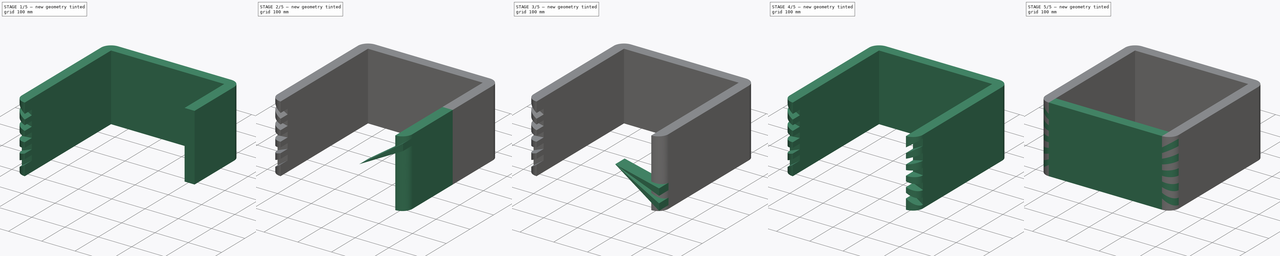
[diagram: build sequence overview — one tinted view per stage of 5, left to right]
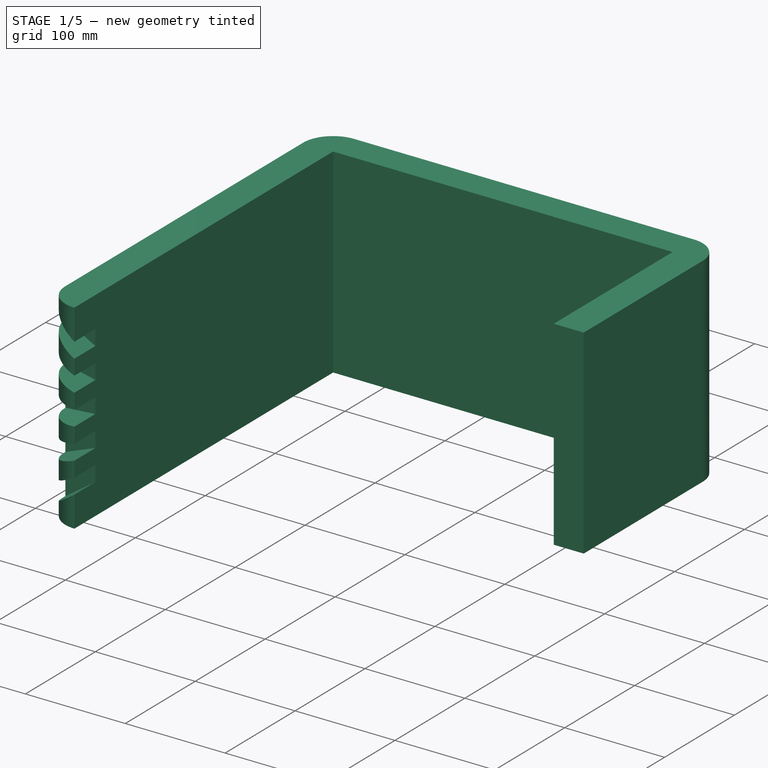
[diagram: stage 1 of 5 — iso view after this stage's code; geometry added in this stage tinted green]
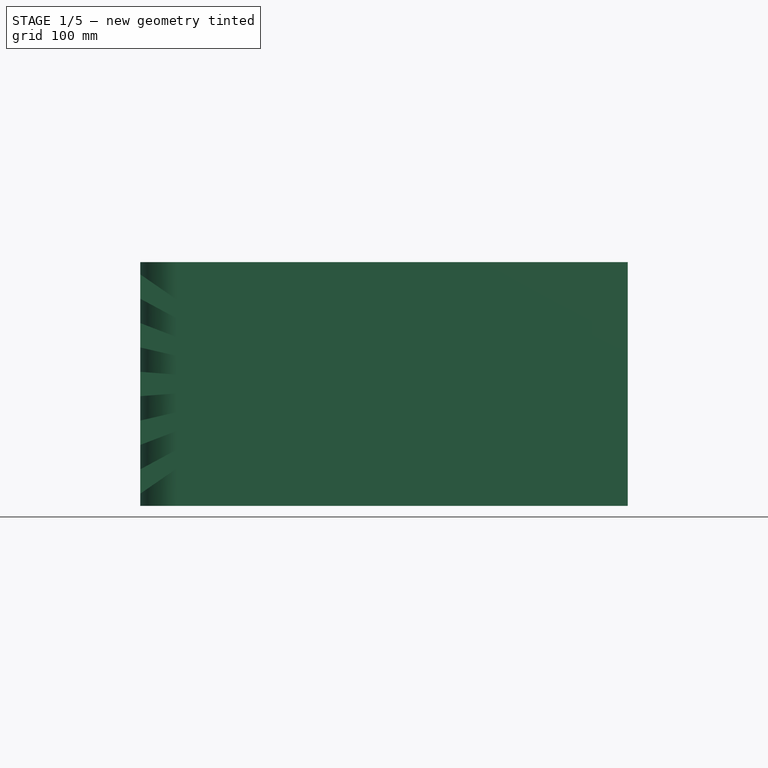
[diagram: stage 1 of 5 — front view after this stage's code; geometry added in this stage tinted green]
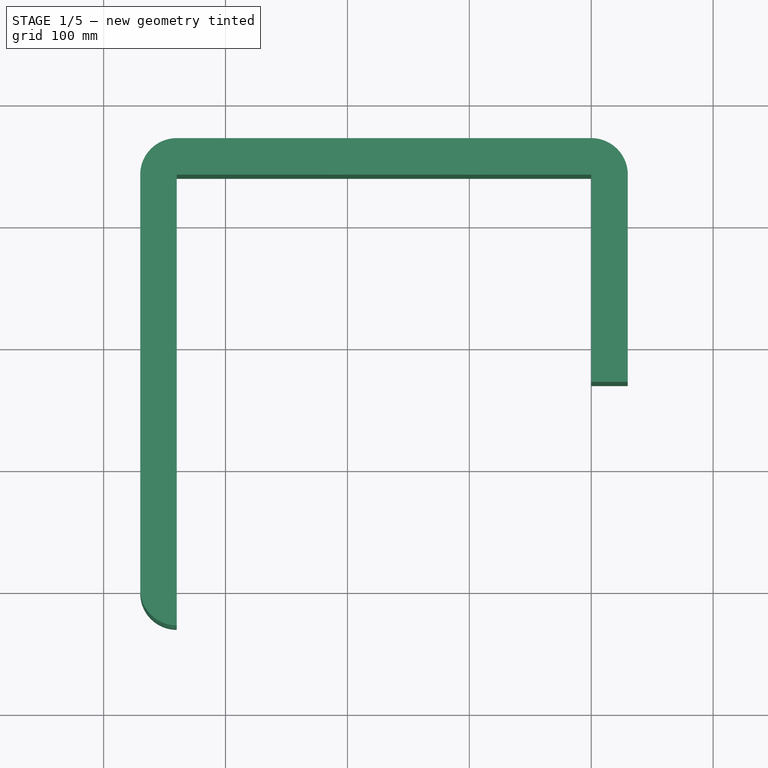
[diagram: stage 1 of 5 — top view after this stage's code; geometry added in this stage tinted green]
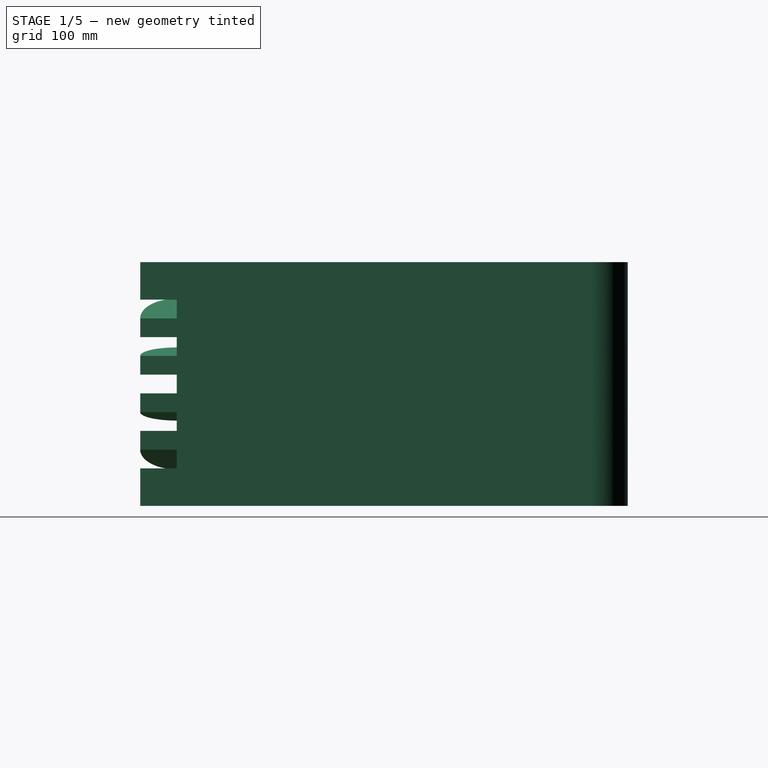
[diagram: stage 1 of 5 — right view after this stage's code; geometry added in this stage tinted green]
FCSTD DOCUMENT  (FreeCAD 0.19R16207 (Git))
Label: EMENDA L
License: CreativeCommons Attribution-NonCommercial-ShareAlike
LicenseURL: http://creativecommons.org/licenses/by-nc-sa/4.0/
objects: PartDesign::Body×6, Sketcher::SketchObject×4, PartDesign::Pad×4, Part::Feature×4, Part::FeaturePython×4, Part::MultiFuse×3, PartDesign::FeatureBase×2, Part::Cut×2
note: 33 computed .brp shape members not serialized (recipe doc carries the construction recipe); baked Part::Feature solids carry a one-line shape summary decoded from their .brp

FEATURE [Part::Feature] Cut002
  shape: bbox 30 x 200 x 200 mm, 26 faces (baked)
FEATURE [Part::FeaturePython] Clone002  label="Cut003"  # Draft clone (typed FeaturePython)
  AttacherType = Attacher::AttachEngine3D
  Fuse = false
  Objects = -> [Cut002]
  Placement = pos=(0,340,-4.16e-14) rot=(1,0,0;3.14159rad)
  Scale = (1,1,1)
FEATURE [Part::Feature] Fusion001001  label="Fusion003"
  shape: bbox 400 x 30 x 200 mm, 46 faces (baked)
FEATURE [Part::Feature] Fusion002001  label="Fusion004"
  shape: bbox 30 x 400 x 200 mm, 46 faces (baked)
FEATURE [Part::FeaturePython] Clone004  label="Fusion005"  # Draft clone (typed FeaturePython)
  AttacherType = Attacher::AttachEngine3D
  Fuse = false
  Objects = -> [Fusion001001]
  Placement = pos=(0,340,-4.16e-14) rot=(1,0,0;3.14159rad)
  Scale = (1,1,1)
FEATURE [Part::FeaturePython] Clone005  label="Fusion006"  # Draft clone (typed FeaturePython)
  AttacherType = Attacher::AttachEngine3D
  Fuse = false
  Objects = -> [Fusion002001]
  Placement = pos=(-340,0,-4.16e-14) rot=(0,1,0;3.14159rad)
  Scale = (1,1,1)
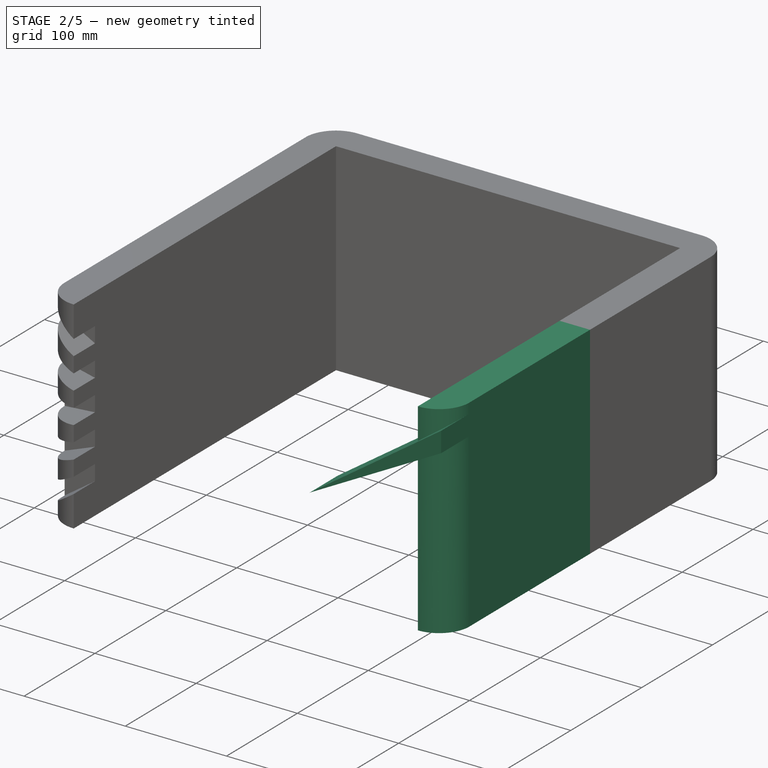
[diagram: stage 2 of 5 — iso view after this stage's code; geometry added in this stage tinted green]
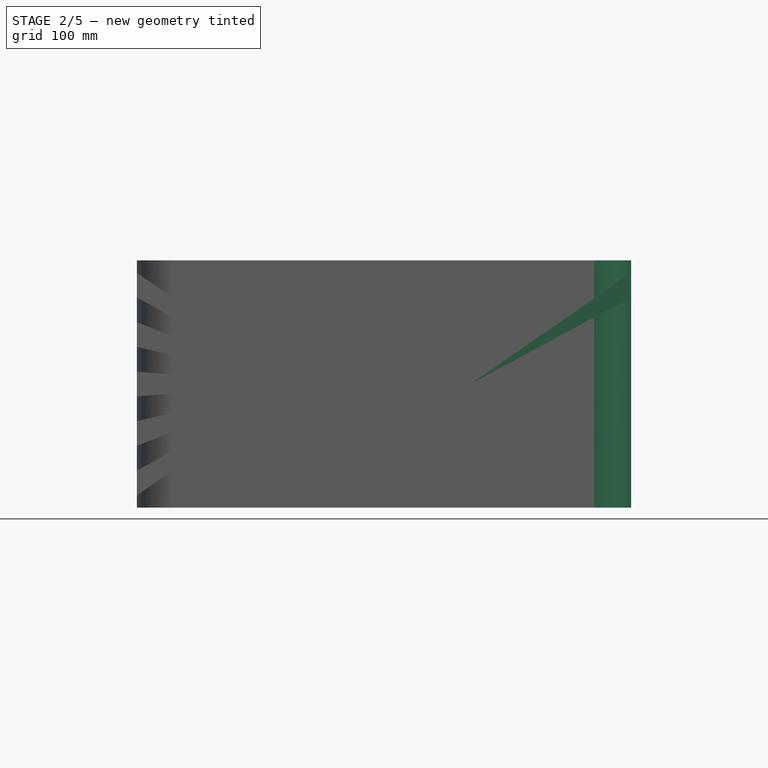
[diagram: stage 2 of 5 — front view after this stage's code; geometry added in this stage tinted green]
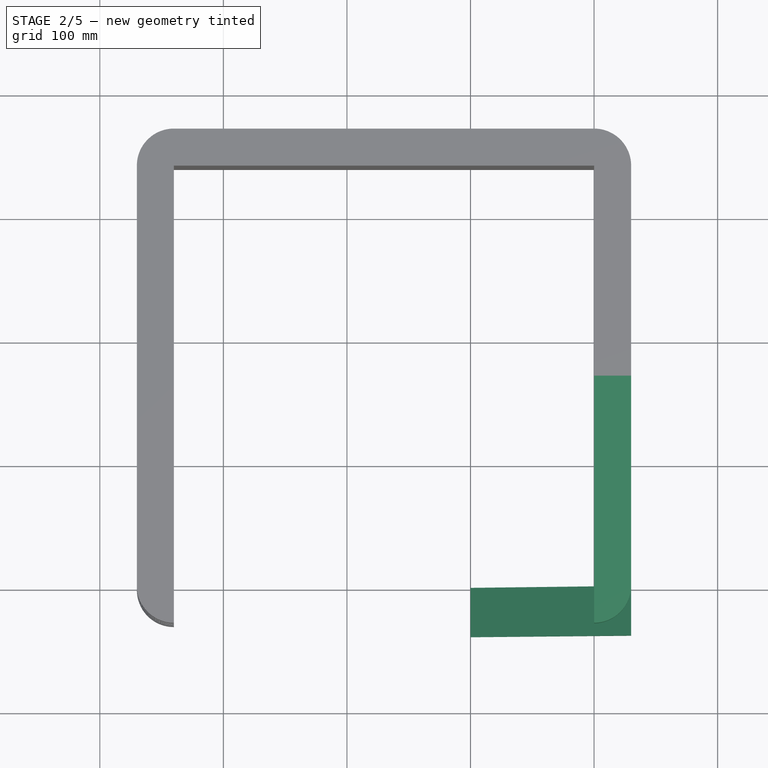
[diagram: stage 2 of 5 — top view after this stage's code; geometry added in this stage tinted green]
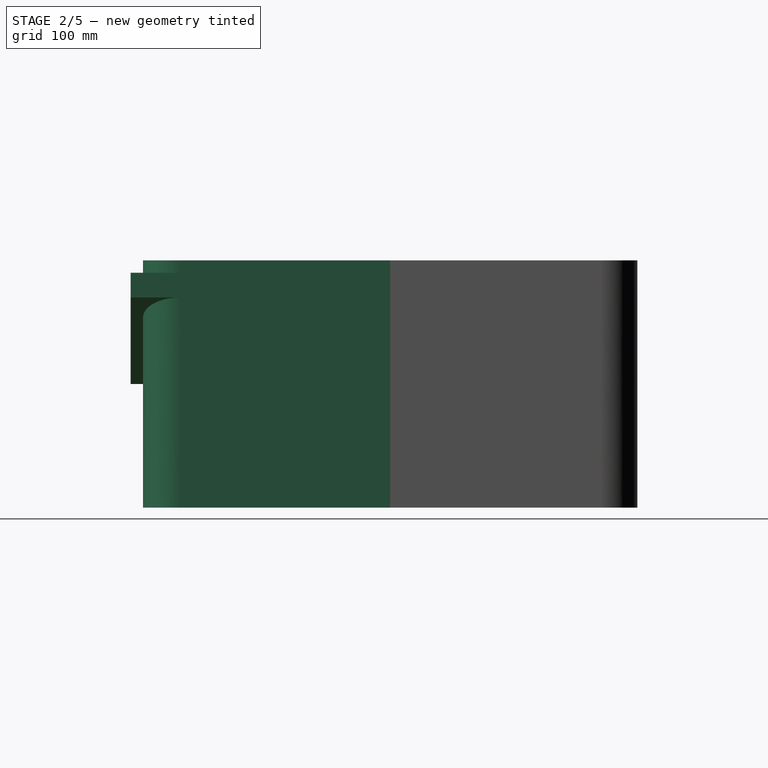
[diagram: stage 2 of 5 — right view after this stage's code; geometry added in this stage tinted green]
FEATURE [PartDesign::Body] Body002
  Group = -> [Clone]
  Origin = -> Origin002
  Tip = -> Clone
FEATURE [Sketcher::SketchObject] Sketch002
  MapMode = 5
  Placement = pos=(0,0,0) rot=(1,0,0;1.5708rad)
  Support = -> [XZ_Plane003]
  sketch-geometry (3):
    g0: LineSegment StartX=-100 StartY=0 StartZ=0 EndX=30 EndY=70 EndZ=0
    g1: LineSegment StartX=30 StartY=70 StartZ=0 EndX=30 EndY=90 EndZ=0
    g2: LineSegment StartX=30 StartY=90 StartZ=0 EndX=-100 EndY=0 EndZ=0
  constraints (9):
    c: Coincident(g0,g1)
    c: Vertical(g1)
    c: Coincident(g1,g2)
    c: Coincident(g2,g0)
    c: DistanceY(g1,g1) = 20
    c: DistanceY(g-1,g0) = 70
    c: DistanceX(g-1,g1) = 30
    c: DistanceX(g2,g2) = 130
    c: PointOnObject(g0,g-1)
FEATURE [PartDesign::Pad] Pad002
  Length = 40
  Length2 = 100
  Placement = pos=(0,0,0) rot=(1,0,0;1.5708rad)
  Profile = -> Sketch002
  Type = 0
FEATURE [Sketcher::SketchObject] Sketch003
  MapMode = 5
  Support = -> [XY_Plane005]
  sketch-geometry (4):
    g0: LineSegment StartX=0 StartY=-30 StartZ=0 EndX=0 EndY=170 EndZ=0
    g1: LineSegment StartX=0 StartY=170 StartZ=0 EndX=30 EndY=170 EndZ=0
    g2: LineSegment StartX=30 StartY=170 StartZ=0 EndX=30 EndY=0 EndZ=0
    g3: ArcOfCircle CenterX=0 CenterY=0 CenterZ=0 NormalX=0 NormalY=0 NormalZ=1 AngleXU=0 Radius=30 StartAngle=4.71239 EndAngle=6.28319
  constraints (11):
    c: Vertical(g0)
    c: Coincident(g0,g1)
    c: Horizontal(g1)
    c: Coincident(g1,g2)
    c: Vertical(g2)
    c: Tangent(g2,g3) = 1.5708
    c: Coincident(g3,g0)
    c: PointOnObject(g3,g0)
    c: Coincident(g3,g-1)
    c: DistanceX(g1,g1) = 30
    c: DistanceY(g0,g0) = 200
FEATURE [PartDesign::Pad] Pad003
  Length = 200
  Length2 = 100
  Midplane = true
  Profile = -> Sketch003
  Type = 0
FEATURE [Part::MultiFuse] Fusion002
  Shapes = -> [Cut002,Clone002]
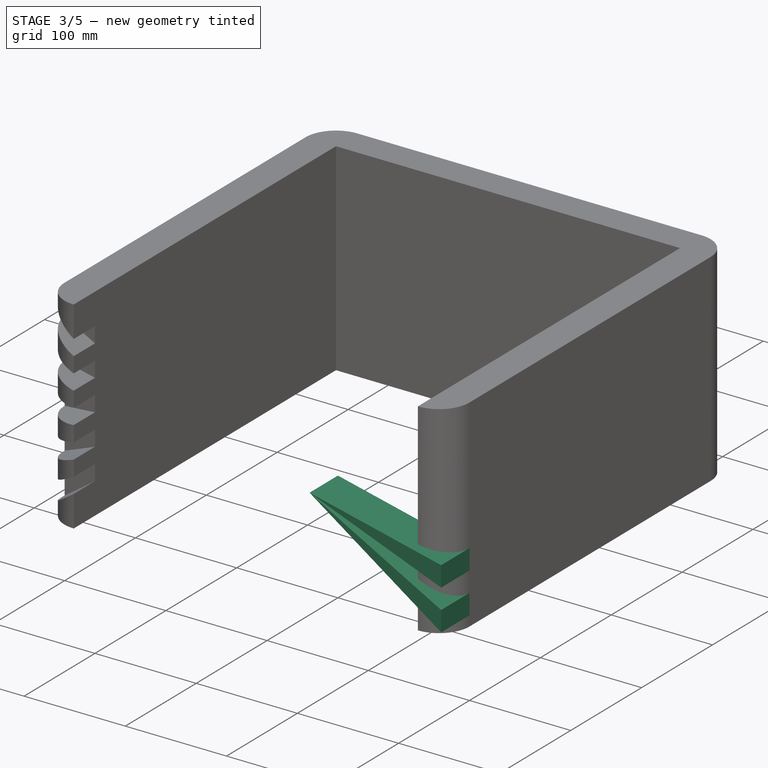
[diagram: stage 3 of 5 — iso view after this stage's code; geometry added in this stage tinted green]
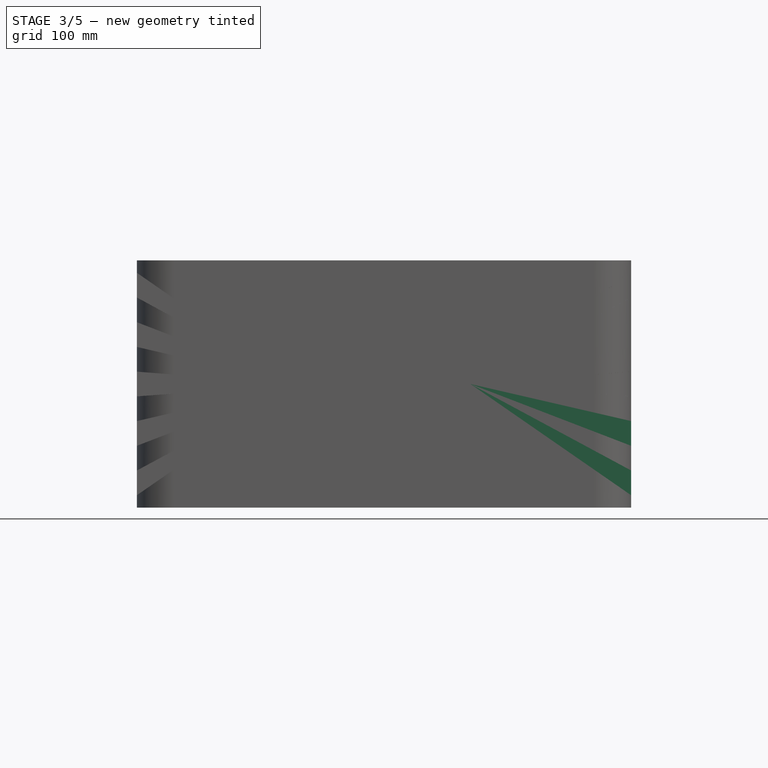
[diagram: stage 3 of 5 — front view after this stage's code; geometry added in this stage tinted green]
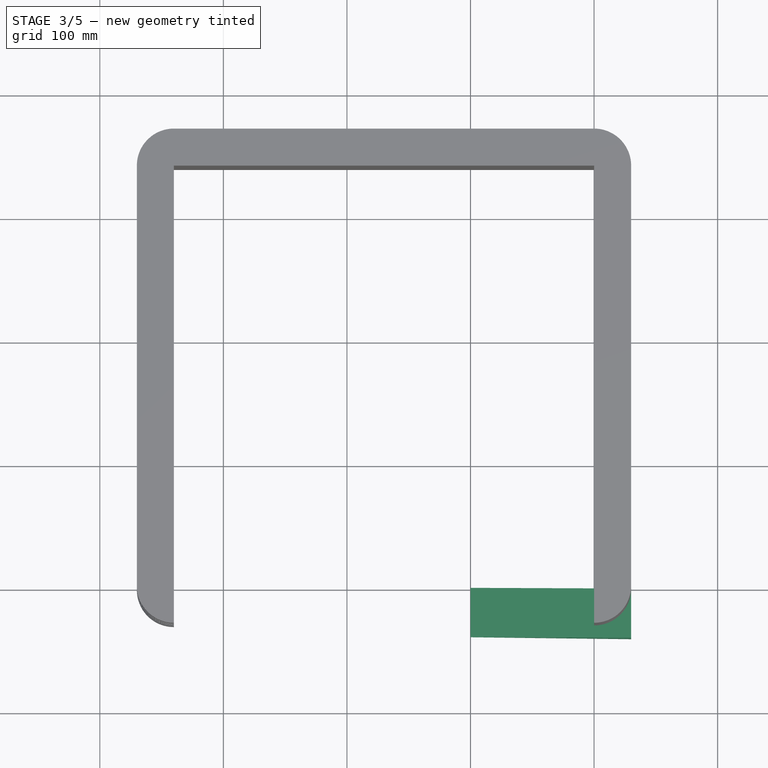
[diagram: stage 3 of 5 — top view after this stage's code; geometry added in this stage tinted green]
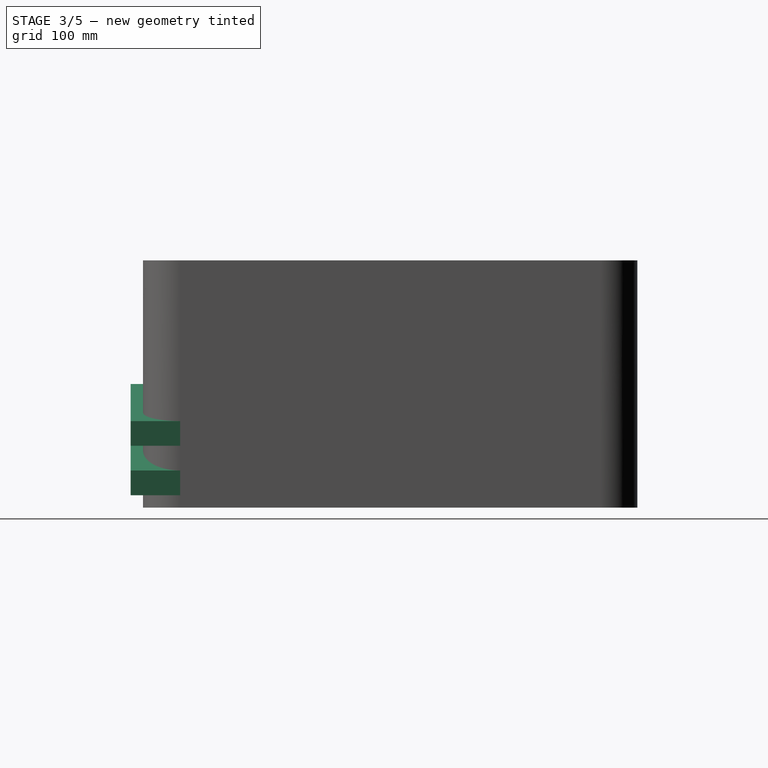
[diagram: stage 3 of 5 — right view after this stage's code; geometry added in this stage tinted green]
FEATURE [PartDesign::Body] Body
  Group = -> [Sketch,Pad]
  Origin = -> Origin
  Tip = -> Pad
FEATURE [Sketcher::SketchObject] Sketch001
  MapMode = 5
  Placement = pos=(0,0,0) rot=(1,0,0;1.5708rad)
  Support = -> [XZ_Plane001]
  sketch-geometry (3):
    g0: LineSegment StartX=-100 StartY=0 StartZ=0 EndX=30 EndY=50 EndZ=0
    g1: LineSegment StartX=30 StartY=50 StartZ=0 EndX=30 EndY=30 EndZ=0
    g2: LineSegment StartX=30 StartY=30 StartZ=0 EndX=-100 EndY=0 EndZ=0
  constraints (9):
    c: Coincident(g0,g1)
    c: Vertical(g1)
    c: Coincident(g1,g2)
    c: Coincident(g2,g0)
    c: DistanceY(g1,g1) = 20
    c: DistanceY(g-1,g1) = 30
    c: DistanceX(g-1,g0) = 30
    c: DistanceX(g0,g0) = 130
    c: PointOnObject(g0,g-1)
FEATURE [PartDesign::Pad] Pad001
  Length = 40
  Length2 = 100
  Placement = pos=(0,0,0) rot=(1,0,0;1.5708rad)
  Profile = -> Sketch001
  Type = 0
FEATURE [PartDesign::Body] Body001
  Group = -> [Sketch001,Pad001]
  Origin = -> Origin001
  Tip = -> Pad001
FEATURE [PartDesign::FeatureBase] Clone
  BaseFeature = -> Pad001
  Placement = pos=(0,-40,8.9e-15) rot=(1,0,0;4.71239rad)
FEATURE [PartDesign::Body] Body003
  Group = -> [Sketch002,Pad002]
  Origin = -> Origin003
  Tip = -> Pad002
FEATURE [PartDesign::FeatureBase] Clone001
  BaseFeature = -> Pad002
  Placement = pos=(0,-40,8.9e-15) rot=(1,0,0;4.71239rad)
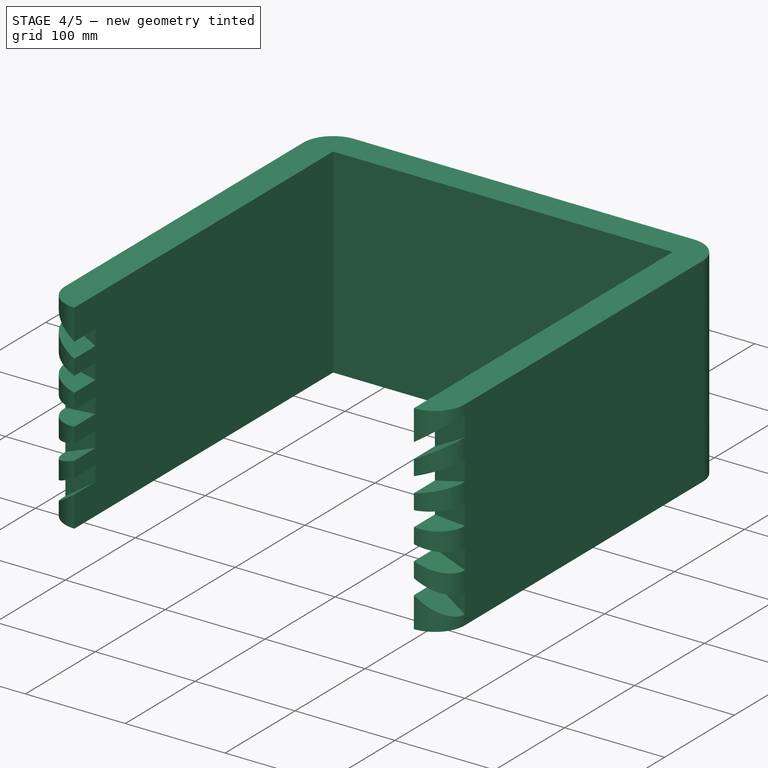
[diagram: stage 4 of 5 — iso view after this stage's code; geometry added in this stage tinted green]
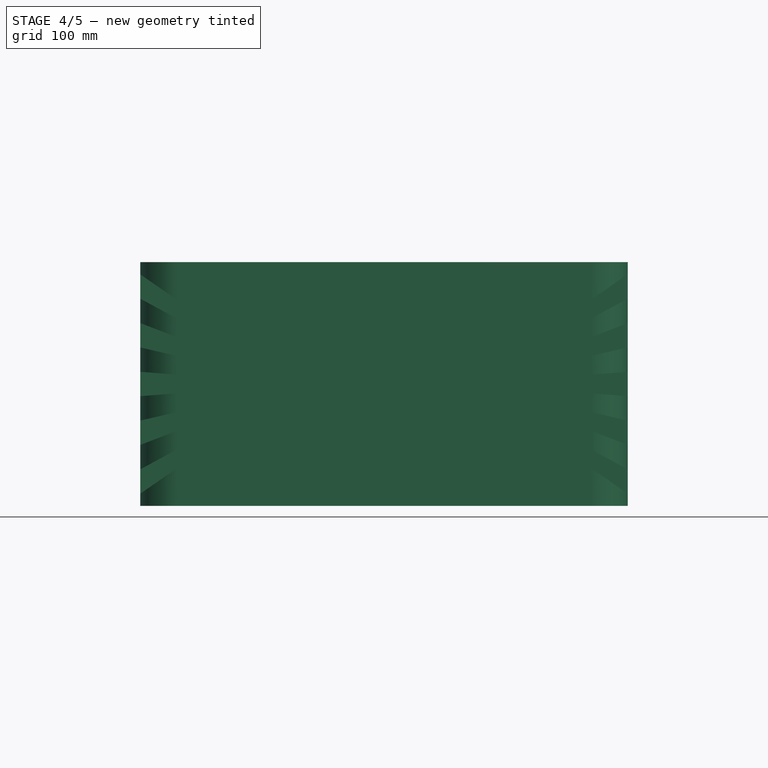
[diagram: stage 4 of 5 — front view after this stage's code; geometry added in this stage tinted green]
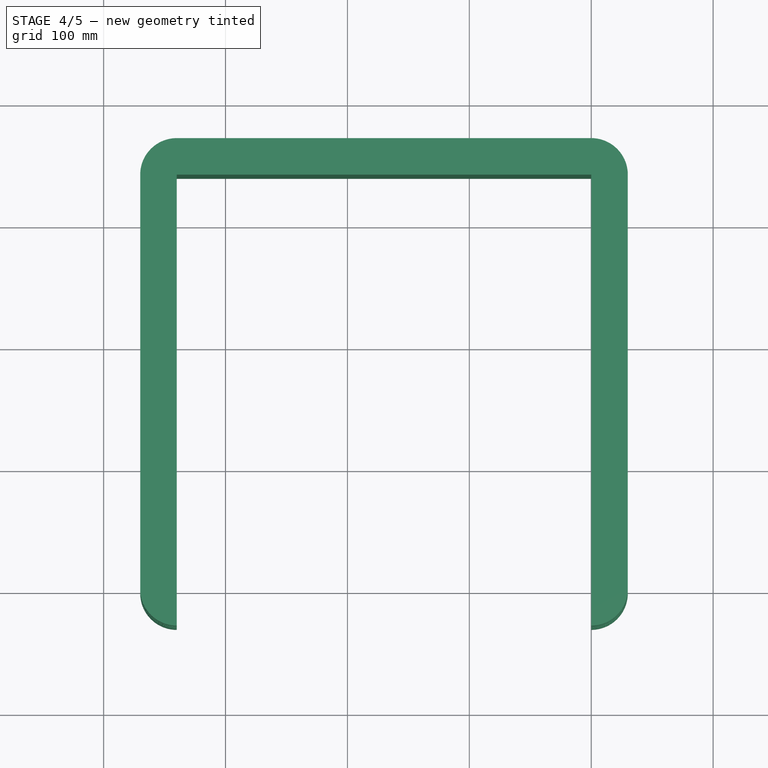
[diagram: stage 4 of 5 — top view after this stage's code; geometry added in this stage tinted green]
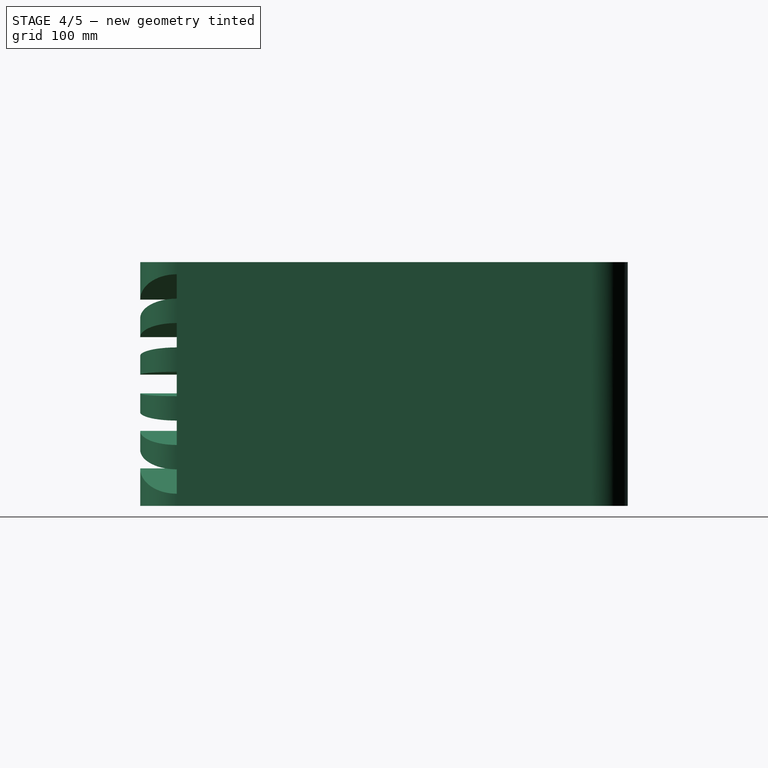
[diagram: stage 4 of 5 — right view after this stage's code; geometry added in this stage tinted green]
FEATURE [Sketcher::SketchObject] Sketch
  MapMode = 5
  Placement = pos=(0,0,0) rot=(1,0,0;1.5708rad)
  Support = -> [XZ_Plane]
  sketch-geometry (3):
    g0: LineSegment StartX=-100 StartY=0 StartZ=0 EndX=30 EndY=10 EndZ=0
    g1: LineSegment StartX=30 StartY=10 StartZ=0 EndX=30 EndY=-10 EndZ=0
    g2: LineSegment StartX=30 StartY=-10 StartZ=0 EndX=-100 EndY=0 EndZ=0
  constraints (9):
    c: PointOnObject(g0,g-1)
    c: Coincident(g0,g1)
    c: Vertical(g1)
    c: Coincident(g1,g2)
    c: Coincident(g2,g0)
    c: DistanceY(g1,g1) = 20
    c: DistanceY(g-1,g0) = 10
    c: DistanceX(g-1,g0) = 30
    c: DistanceX(g0,g0) = 130
FEATURE [PartDesign::Pad] Pad
  Length = 40
  Length2 = 100
  Placement = pos=(0,0,0) rot=(1,0,0;1.5708rad)
  Profile = -> Sketch
  Type = 0
FEATURE [PartDesign::Body] Body004
  Group = -> [Clone001]
  Origin = -> Origin004
  Tip = -> Clone001
FEATURE [Part::MultiFuse] Fusion
  Shapes = -> [Clone001,Pad002,Clone,Pad001,Pad]
FEATURE [PartDesign::Body] Body005
  Group = -> [Sketch003,Pad003]
  Origin = -> Origin005
  Tip = -> Pad003
FEATURE [Part::Cut] Cut
  Base = -> Pad003
  Tool = -> Fusion
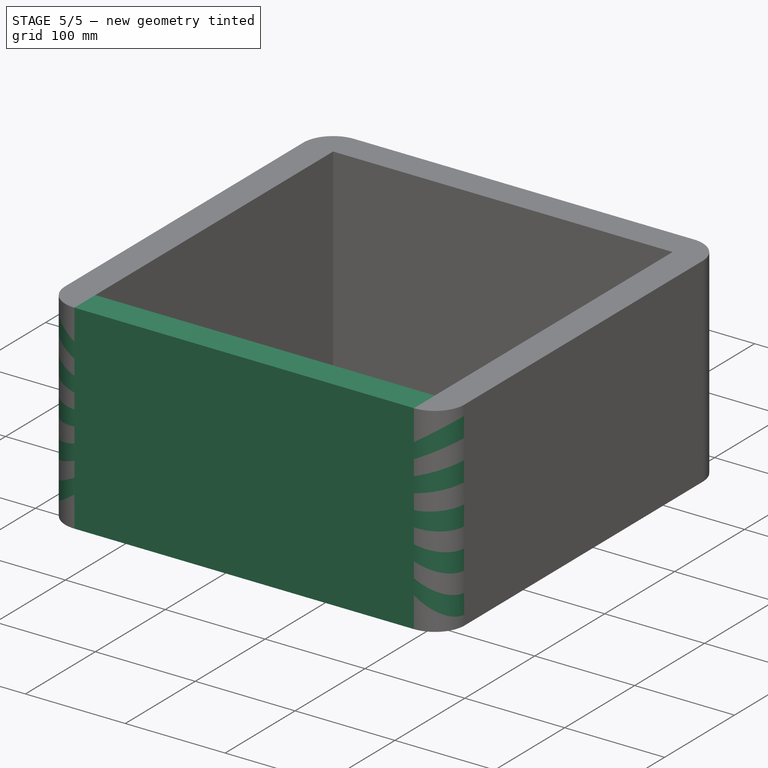
[diagram: stage 5 of 5 — iso view after this stage's code; geometry added in this stage tinted green]
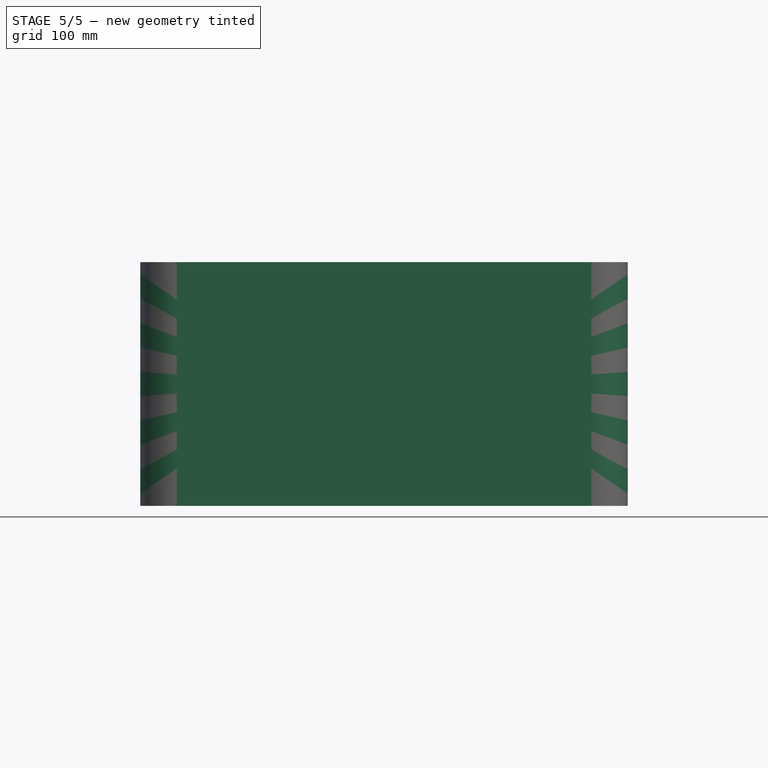
[diagram: stage 5 of 5 — front view after this stage's code; geometry added in this stage tinted green]
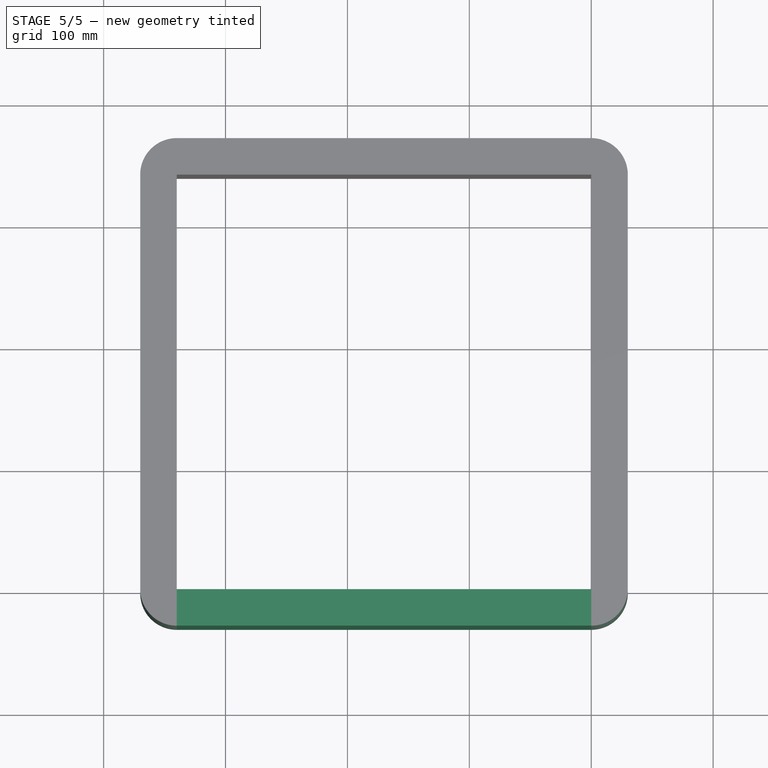
[diagram: stage 5 of 5 — top view after this stage's code; geometry added in this stage tinted green]
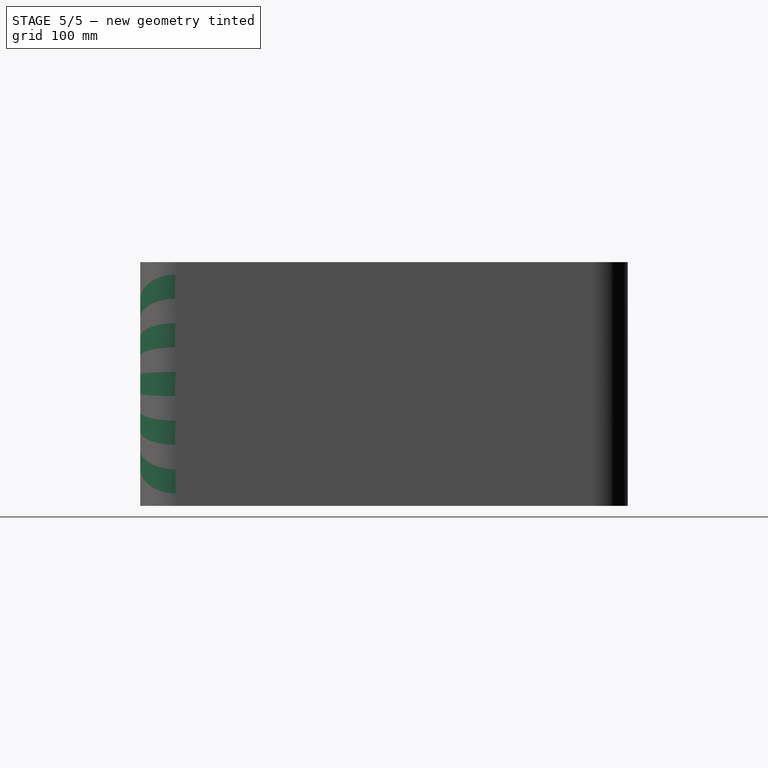
[diagram: stage 5 of 5 — right view after this stage's code; geometry added in this stage tinted green]
FEATURE [Part::Feature] Pad003001  label="Pad004"
  Placement = pos=(0,0,0) rot=(-0.707107,0.707107,0;3.14159rad)
  shape: bbox 200 x 30 x 200 mm, 6 faces (baked)
FEATURE [Part::Cut] Cut001
  Base = -> Pad003001
  Tool = -> Cut
FEATURE [Part::FeaturePython] Clone003  label="Cut004"  # Draft clone (typed FeaturePython)
  AttacherType = Attacher::AttachEngine3D
  Fuse = false
  Objects = -> [Cut001]
  Placement = pos=(-340,0,-4.16e-14) rot=(0,1,0;3.14159rad)
  Scale = (1,1,1)
FEATURE [Part::MultiFuse] Fusion001
  Shapes = -> [Cut001,Clone003]
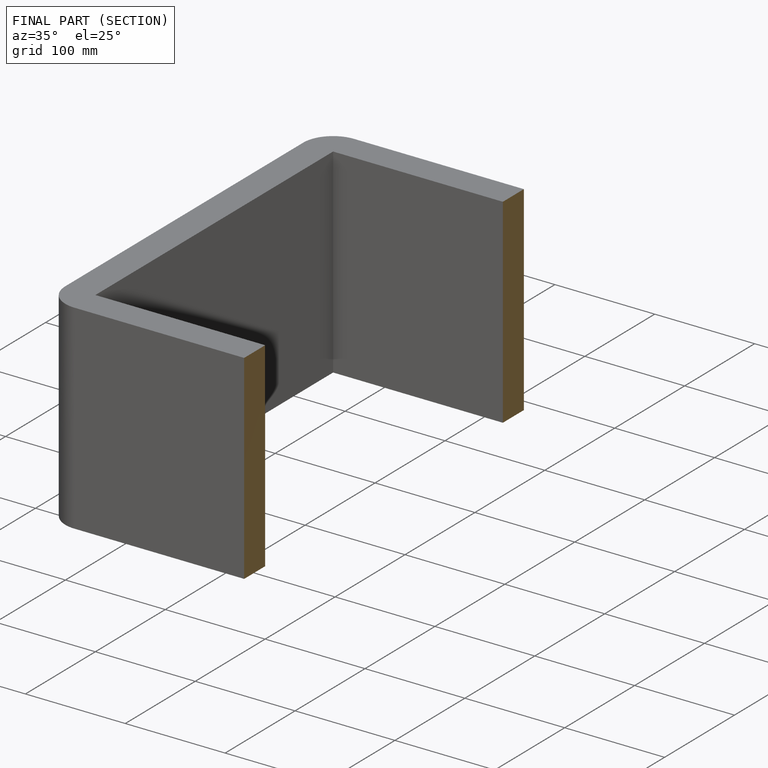
[diagram: finished part — half-section view (interior)]
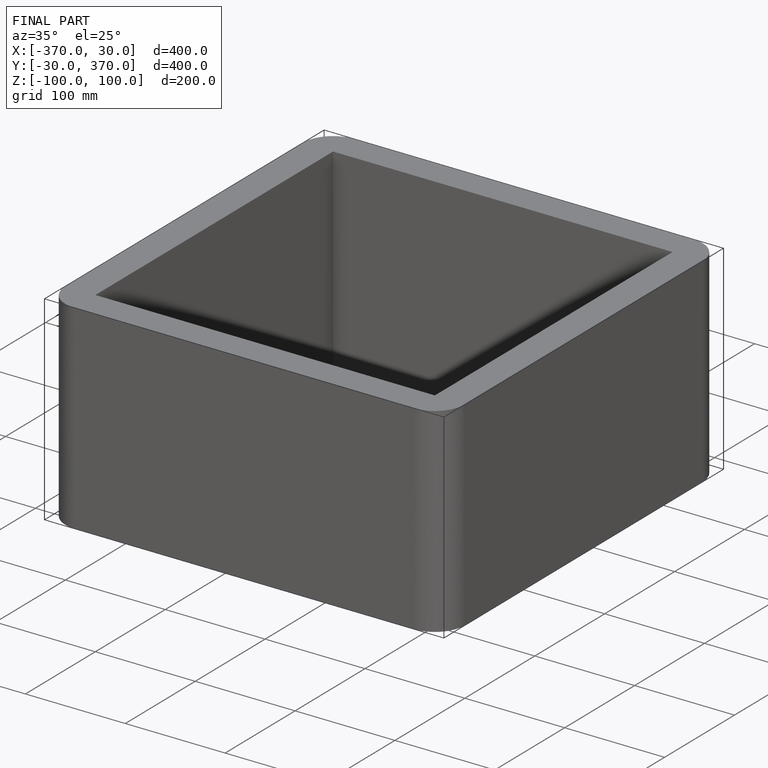
[diagram: finished part — iso view with bounding-box wireframe]
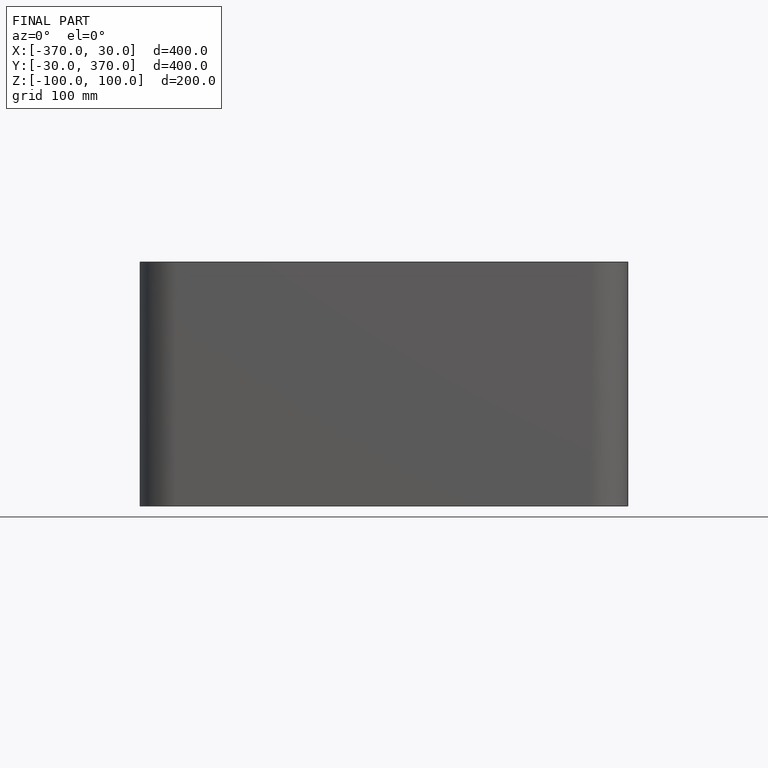
[diagram: finished part — front view with bounding-box wireframe]
